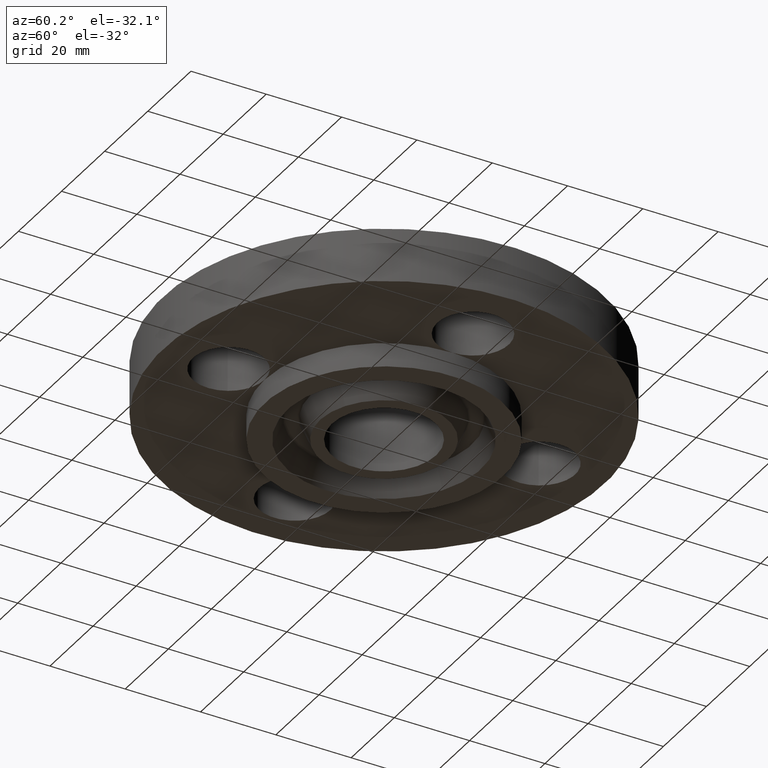
[diagram: clean part render]
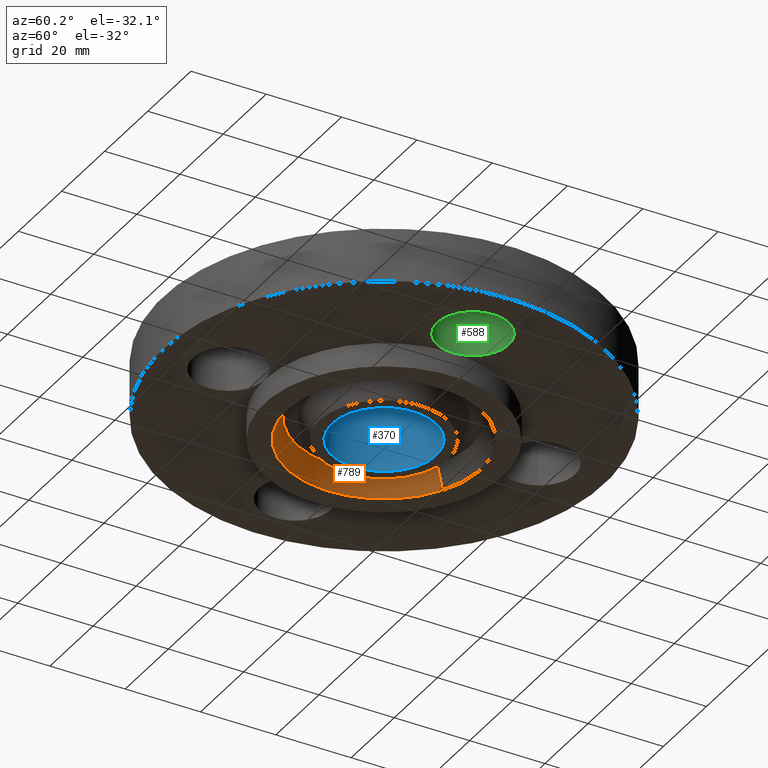
[diagram: same view with three faces highlighted in distinct colors, each labeled with its STEP entity id]
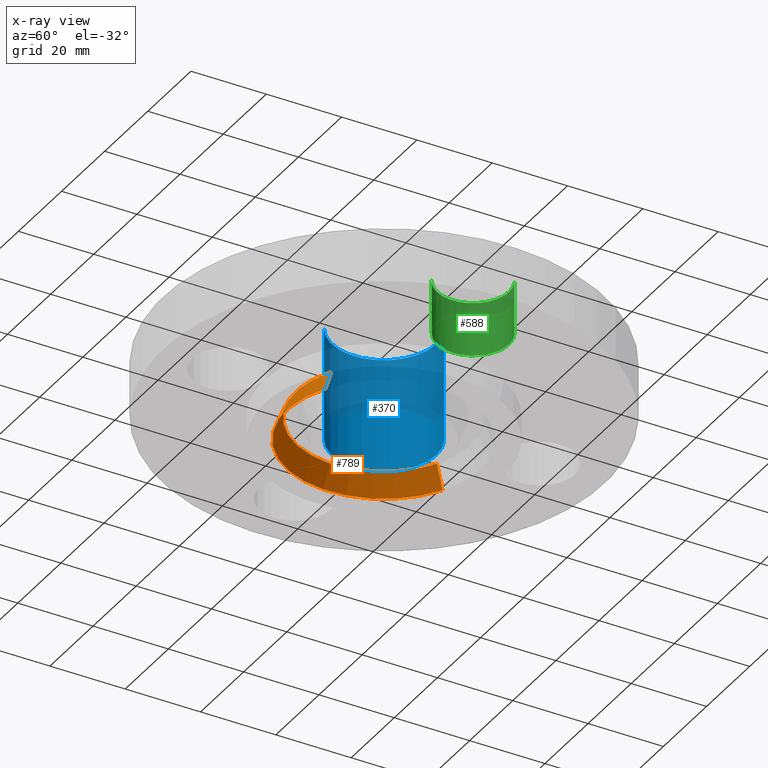
[diagram: x-ray of the same camera — body ghosted, the three highlighted faces saturated]
A machine part, auxiliary view with three faces highlighted in distinct colors.
The next image is the same camera in x-ray (body ghosted, the three faces saturated) — at least one of them is partly hidden behind the body in this view.
Their STEP definitions:

[orange] entity #789 — the highlighted conical surface has half-angle 23 deg.
#688=AXIS2_PLACEMENT_3D('Circle Axis2P3D',#686,#687,$) ;
#735=AXIS2_PLACEMENT_3D('Circle Axis2P3D',#733,#734,$) ;
#771=AXIS2_PLACEMENT_3D('Cone Axis2P3D',#768,#769,#770) ;
#686=CARTESIAN_POINT('Axis2P3D Location',(-1.39870617276E-016,-2.79741234551E-016,-0.250000000001)) ;
#690=CARTESIAN_POINT('Vertex',(0.486928548285,-0.891316728988,-0.250000000001)) ;
#692=CARTESIAN_POINT('Vertex',(-0.486928548285,0.891316728988,-0.250000000001)) ;
#733=CARTESIAN_POINT('Axis2P3D Location',(0.,0.,-0.0190701156784)) ;
#737=CARTESIAN_POINT('Vertex',(-0.439933377545,0.805292645967,-0.0190701156784)) ;
#739=CARTESIAN_POINT('Vertex',(0.439933377545,-0.805292645967,-0.0190701156784)) ;
#768=CARTESIAN_POINT('Axis2P3D Location',(0.,0.,-0.0190701156784)) ;
#773=CARTESIAN_POINT('Line Origine',(-0.463430962915,0.848304687477,-0.13453505784)) ;
#778=CARTESIAN_POINT('Line Origine',(0.463430962915,-0.848304687477,-0.13453505784)) ;
#687=DIRECTION('Axis2P3D Direction',(0.,0.,-0.0393700787402)) ;
#734=DIRECTION('Axis2P3D Direction',(0.,0.,0.0393700787402)) ;
#769=DIRECTION('Axis2P3D Direction',(-0.,-0.,-0.0393700787402)) ;
#770=DIRECTION('Axis2P3D XDirection',(-0.0188750212049,0.0345504945626,0.)) ;
#774=DIRECTION('Vector Direction',(-0.00737505833565,0.0134999537303,-0.0362403485611)) ;
#779=DIRECTION('Vector Direction',(0.00737505833565,-0.0134999537303,-0.0362403485611)) ;
#775=VECTOR('Line Direction',#774,0.0393700787402) ;
#780=VECTOR('Line Direction',#779,0.0393700787402) ;
#784=ORIENTED_EDGE('',*,*,#694,.T.) ;
#785=ORIENTED_EDGE('',*,*,#777,.T.) ;
#786=ORIENTED_EDGE('',*,*,#741,.T.) ;
#787=ORIENTED_EDGE('',*,*,#782,.F.) ;
#789=ADVANCED_FACE('PartBody',(#788),#772,.F.) ;
#689=CIRCLE('generated circle',#688,1.01565) ;
#736=CIRCLE('generated circle',#735,0.917626079799) ;
#772=CONICAL_SURFACE('Cone',#771,0.917626079799,0.401425727959) ;
#694=EDGE_CURVE('',#691,#693,#689,.T.) ;
#741=EDGE_CURVE('',#738,#740,#736,.T.) ;
#777=EDGE_CURVE('',#693,#738,#776,.F.) ;
#782=EDGE_CURVE('',#691,#740,#781,.F.) ;
#783=EDGE_LOOP('',(#784,#785,#786,#787)) ;
#788=FACE_OUTER_BOUND('',#783,.T.) ;
#776=LINE('Line',#773,#775) ;
#781=LINE('Line',#778,#780) ;
#691=VERTEX_POINT('',#690) ;
#693=VERTEX_POINT('',#692) ;
#738=VERTEX_POINT('',#737) ;
#740=VERTEX_POINT('',#739) ;

[blue] entity #370 — the highlighted cylindrical surface (partial cylindrical patch) has radius 13.843 mm, axis along (0, 0, -1).
#311=AXIS2_PLACEMENT_3D('Circle Axis2P3D',#309,#310,$) ;
#331=AXIS2_PLACEMENT_3D('Cylinder Axis2P3D',#328,#329,#330) ;
#361=AXIS2_PLACEMENT_3D('Circle Axis2P3D',#359,#360,$) ;
#309=CARTESIAN_POINT('Axis2P3D Location',(0.,0.,0.940000000004)) ;
#313=CARTESIAN_POINT('Vertex',(-0.26128691854,-0.478282496232,0.940000000004)) ;
#315=CARTESIAN_POINT('Vertex',(0.26128691854,0.478282496232,0.940000000004)) ;
#328=CARTESIAN_POINT('Axis2P3D Location',(0.,0.,0.345000000001)) ;
#333=CARTESIAN_POINT('Line Origine',(0.26128691854,0.478282496232,0.345000000001)) ;
#337=CARTESIAN_POINT('Vertex',(0.26128691854,0.478282496232,-0.250000000001)) ;
#344=CARTESIAN_POINT('Vertex',(-0.26128691854,-0.478282496232,-0.250000000001)) ;
#347=CARTESIAN_POINT('Line Origine',(-0.26128691854,-0.478282496232,0.345000000001)) ;
#359=CARTESIAN_POINT('Axis2P3D Location',(0.,0.,-0.250000000001)) ;
#310=DIRECTION('Axis2P3D Direction',(0.,0.,-0.0393700787402)) ;
#329=DIRECTION('Axis2P3D Direction',(0.,0.,-0.0393700787402)) ;
#330=DIRECTION('Axis2P3D XDirection',(-0.0188750212049,-0.0345504945626,0.)) ;
#334=DIRECTION('Vector Direction',(0.,0.,-0.0393700787402)) ;
#348=DIRECTION('Vector Direction',(0.,0.,-0.0393700787402)) ;
#360=DIRECTION('Axis2P3D Direction',(0.,0.,-0.0393700787402)) ;
#335=VECTOR('Line Direction',#334,0.0393700787402) ;
#349=VECTOR('Line Direction',#348,0.0393700787402) ;
#365=ORIENTED_EDGE('',*,*,#317,.F.) ;
#366=ORIENTED_EDGE('',*,*,#351,.T.) ;
#367=ORIENTED_EDGE('',*,*,#363,.T.) ;
#368=ORIENTED_EDGE('',*,*,#339,.F.) ;
#370=ADVANCED_FACE('PartBody',(#369),#332,.F.) ;
#312=CIRCLE('generated circle',#311,0.545000000002) ;
#362=CIRCLE('generated circle',#361,0.545000000002) ;
#332=CYLINDRICAL_SURFACE('generated cylinder',#331,0.545000000002) ;
#317=EDGE_CURVE('',#314,#316,#312,.T.) ;
#339=EDGE_CURVE('',#316,#338,#336,.T.) ;
#351=EDGE_CURVE('',#314,#345,#350,.T.) ;
#363=EDGE_CURVE('',#345,#338,#362,.T.) ;
#364=EDGE_LOOP('',(#365,#366,#367,#368)) ;
#369=FACE_OUTER_BOUND('',#364,.T.) ;
#336=LINE('Line',#333,#335) ;
#350=LINE('Line',#347,#349) ;
#314=VERTEX_POINT('',#313) ;
#316=VERTEX_POINT('',#315) ;
#338=VERTEX_POINT('',#337) ;
#345=VERTEX_POINT('',#344) ;

[green] entity #588 — the highlighted cylindrical surface (partial cylindrical patch) has radius 9.525 mm, axis along (0, -0, -1).
#488=AXIS2_PLACEMENT_3D('Circle Axis2P3D',#486,#487,$) ;
#502=AXIS2_PLACEMENT_3D('Circle Axis2P3D',#500,#501,$) ;
#548=AXIS2_PLACEMENT_3D('Cylinder Axis2P3D',#545,#546,#547) ;
#578=AXIS2_PLACEMENT_3D('Circle Axis2P3D',#576,#577,$) ;
#434=CARTESIAN_POINT('Vertex',(1.25000000001,-1.39870617276E-016,0.)) ;
#486=CARTESIAN_POINT('Axis2P3D Location',(1.62500000001,-1.39870617276E-016,0.)) ;
#490=CARTESIAN_POINT('Vertex',(1.44521542303,-0.32909346071,6.99353086378E-017)) ;
#497=CARTESIAN_POINT('Vertex',(1.80478457698,0.32909346071,0.)) ;
#500=CARTESIAN_POINT('Axis2P3D Location',(1.62500000001,-1.39870617276E-016,0.)) ;
#545=CARTESIAN_POINT('Axis2P3D Location',(1.62500000001,-1.8023868212E-016,0.556062992128)) ;
#550=CARTESIAN_POINT('Line Origine',(1.80478457698,0.32909346071,0.280000000001)) ;
#554=CARTESIAN_POINT('Vertex',(1.80478457698,0.32909346071,0.560000000002)) ;
#557=CARTESIAN_POINT('Line Origine',(1.44521542303,-0.32909346071,0.280000000001)) ;
#561=CARTESIAN_POINT('Vertex',(1.44521542303,-0.32909346071,0.560000000002)) ;
#576=CARTESIAN_POINT('Axis2P3D Location',(1.62500000001,-1.8023868212E-016,0.560000000002)) ;
#487=DIRECTION('Axis2P3D Direction',(0.,0.,-0.0393700787402)) ;
#501=DIRECTION('Axis2P3D Direction',(0.,0.,-0.0393700787402)) ;
#546=DIRECTION('Axis2P3D Direction',(0.,-0.,-0.0393700787402)) ;
#547=DIRECTION('Axis2P3D XDirection',(-0.0188750212049,-0.0345504945626,0.)) ;
#551=DIRECTION('Vector Direction',(0.,0.,-0.0393700787402)) ;
#558=DIRECTION('Vector Direction',(0.,0.,-0.0393700787402)) ;
#577=DIRECTION('Axis2P3D Direction',(0.,-0.,-0.0393700787402)) ;
#552=VECTOR('Line Direction',#551,0.0393700787402) ;
#559=VECTOR('Line Direction',#558,0.0393700787402) ;
#582=ORIENTED_EDGE('',*,*,#563,.F.) ;
#583=ORIENTED_EDGE('',*,*,#492,.T.) ;
#584=ORIENTED_EDGE('',*,*,#504,.T.) ;
#585=ORIENTED_EDGE('',*,*,#556,.T.) ;
#586=ORIENTED_EDGE('',*,*,#580,.F.) ;
#588=ADVANCED_FACE('PartBody',(#587),#549,.F.) ;
#489=CIRCLE('generated circle',#488,0.375000000001) ;
#503=CIRCLE('generated circle',#502,0.375000000001) ;
#579=CIRCLE('generated circle',#578,0.375000000001) ;
#549=CYLINDRICAL_SURFACE('generated cylinder',#548,0.375000000001) ;
#492=EDGE_CURVE('',#491,#435,#489,.T.) ;
#504=EDGE_CURVE('',#435,#498,#503,.T.) ;
#556=EDGE_CURVE('',#498,#555,#553,.F.) ;
#563=EDGE_CURVE('',#491,#562,#560,.F.) ;
#580=EDGE_CURVE('',#562,#555,#579,.T.) ;
#581=EDGE_LOOP('',(#582,#583,#584,#585,#586)) ;
#587=FACE_OUTER_BOUND('',#581,.T.) ;
#553=LINE('Line',#550,#552) ;
#560=LINE('Line',#557,#559) ;
#435=VERTEX_POINT('',#434) ;
#491=VERTEX_POINT('',#490) ;
#498=VERTEX_POINT('',#497) ;
#555=VERTEX_POINT('',#554) ;
#562=VERTEX_POINT('',#561) ;